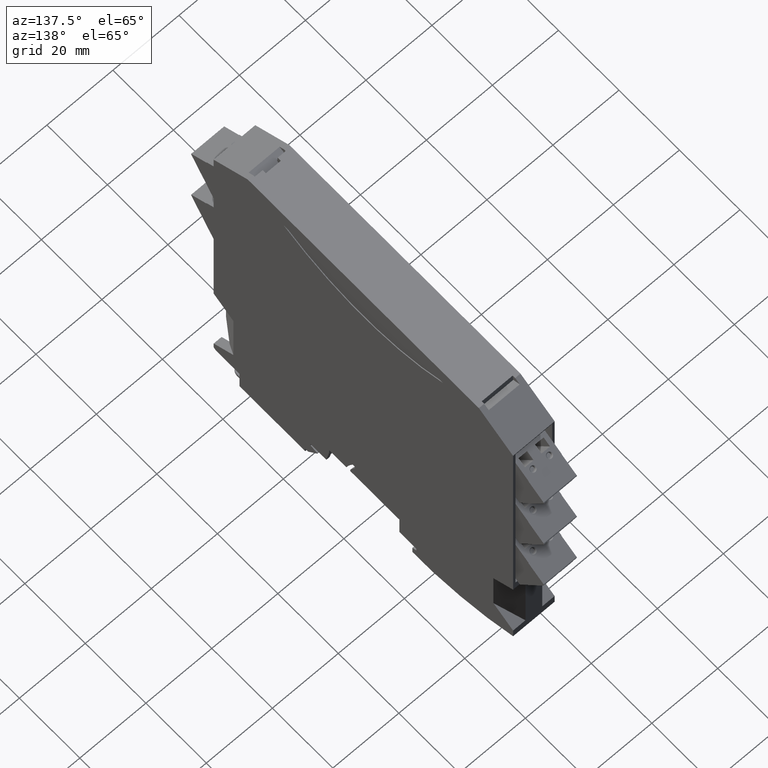
[diagram: clean part render]
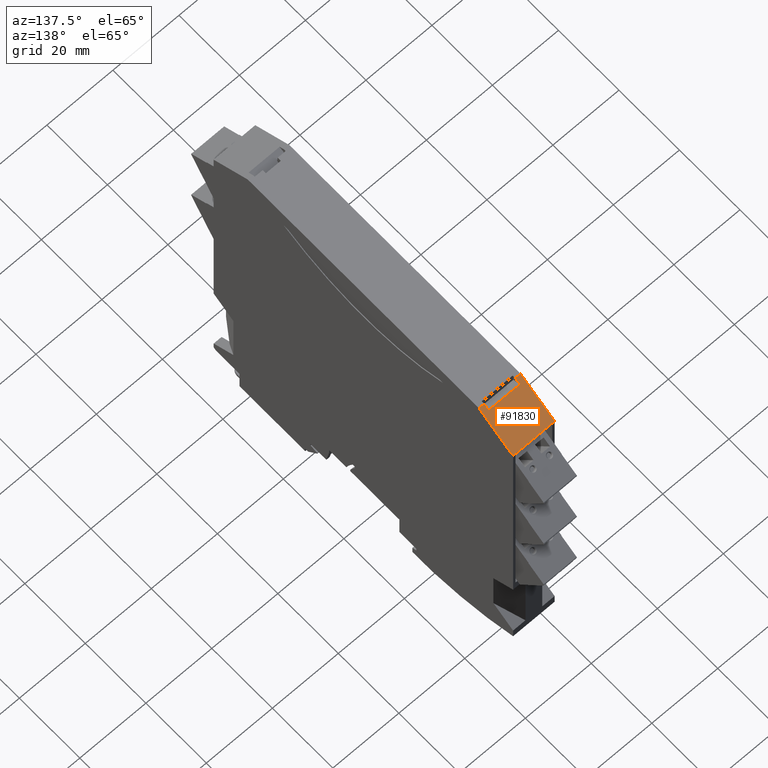
[diagram: same view with one face highlighted and labeled with its STEP entity id]
A machine part, auxiliary view. The second image highlights one B-rep face of the part: STEP entity #91830.
In plain terms, the highlighted planar face has unit normal (-0, -0.5446, -0.8387).
Its self-contained STEP definition (entity closure, byte-faithful):
#5710=CARTESIAN_POINT('',(12.5999992226559,87.700000000391,
113.699999999874));
#5720=VERTEX_POINT('',#5710);
#5750=CARTESIAN_POINT('',(12.5999992226559,49.5000000003095,
138.507370060177));
#5760=DIRECTION('',(1.24386761660573E-18,-0.838670567944371,
0.544639035016649));
#5770=VECTOR('',#5760,1.);
#5780=LINE('',#5750,#5770);
#5790=CARTESIAN_POINT('',(12.5999992226559,99.0000000001657,
106.361694196857));
#5800=VERTEX_POINT('',#5790);
#5810=EDGE_CURVE('',#5800,#5720,#5780,.T.);
#9090=CARTESIAN_POINT('',(8.79999999946697,99.0000000001657,
106.361694196857));
#9100=DIRECTION('',(1.,-5.21592700543322E-36,-2.28384227807285E-18));
#9110=VECTOR('',#9100,1.);
#9120=LINE('',#9090,#9110);
#9130=CARTESIAN_POINT('',(-6.65920651954366E-11,99.0000000001657,
106.361694196857));
#9140=VERTEX_POINT('',#9130);
#9150=EDGE_CURVE('',#9140,#5800,#9120,.T.);
#91320=CARTESIAN_POINT('',(12.5999992226559,87.7000000004445,
113.699999999839));
#91330=DIRECTION('',(-1.91539130044672E-18,-0.544639035016649,
-0.838670567944371));
#91340=DIRECTION('',(1.24386965445982E-18,-0.838670567944371,
0.544639035016649));
#91350=AXIS2_PLACEMENT_3D('',#91320,#91330,#91340);
#91360=PLANE('',#91350);
#91370=ORIENTED_EDGE('',*,*,#9150,.F.);
#91380=ORIENTED_EDGE('',*,*,#5810,.F.);
#91390=CARTESIAN_POINT('',(8.79999999946697,87.700000000391,
113.699999999874));
#91400=DIRECTION('',(-1.,5.21558977108073E-36,2.28384227807285E-18));
#91410=VECTOR('',#91400,1.);
#91420=LINE('',#91390,#91410);
#91430=CARTESIAN_POINT('',(10.9999992223369,87.7000000002141,
113.699999999874));
#91440=VERTEX_POINT('',#91430);
#91450=EDGE_CURVE('',#5720,#91440,#91420,.T.);
#91460=ORIENTED_EDGE('',*,*,#91450,.F.);
#91470=CARTESIAN_POINT('',(10.999999222263,49.5000000003095,
138.507370060177));
#91480=DIRECTION('',(1.62209010626097E-12,0.838670567944371,
-0.544639035016649));
#91490=VECTOR('',#91480,1.);
#91500=LINE('',#91470,#91490);
#91510=CARTESIAN_POINT('',(10.9999992223398,89.2099728324681,
112.719412177197));
#91520=VERTEX_POINT('',#91510);
#91530=EDGE_CURVE('',#91440,#91520,#91500,.T.);
#91540=ORIENTED_EDGE('',*,*,#91530,.F.);
#91550=CARTESIAN_POINT('',(8.79999999946697,89.2099728324681,
112.719412177197));
#91560=DIRECTION('',(1.,1.16032475869288E-16,-7.76362131654147E-17));
#91570=VECTOR('',#91560,1.);
#91580=LINE('',#91550,#91570);
#91590=CARTESIAN_POINT('',(1.59999922283014,89.2099728324681,
112.719412177197));
#91600=VERTEX_POINT('',#91590);
#91610=EDGE_CURVE('',#91600,#91520,#91580,.T.);
#91620=ORIENTED_EDGE('',*,*,#91610,.T.);
#91630=CARTESIAN_POINT('',(1.59999922283015,49.5000000003095,
138.507370060177));
#91640=DIRECTION('',(2.78799623772895E-16,-0.838670567944371,
0.544639035016649));
#91650=VECTOR('',#91640,1.);
#91660=LINE('',#91630,#91650);
#91670=CARTESIAN_POINT('',(1.59999922283014,87.7000000002141,
113.699999999874));
#91680=VERTEX_POINT('',#91670);
#91690=EDGE_CURVE('',#91600,#91680,#91660,.T.);
#91700=ORIENTED_EDGE('',*,*,#91690,.F.);
#91710=CARTESIAN_POINT('',(-5.56337198531764E-11,87.700000000391,
113.699999999874));
#91720=VERTEX_POINT('',#91710);
#91730=EDGE_CURVE('',#91680,#91720,#91420,.T.);
#91740=ORIENTED_EDGE('',*,*,#91730,.F.);
#91750=CARTESIAN_POINT('',(-1.85931270380024E-11,49.5000000003095,
138.507370060177));
#91760=DIRECTION('',(-8.13239609405544E-13,0.838670567944371,
-0.544639035016649));
#91770=VECTOR('',#91760,1.);
#91780=LINE('',#91750,#91770);
#91790=EDGE_CURVE('',#91720,#9140,#91780,.T.);
#91800=ORIENTED_EDGE('',*,*,#91790,.F.);
#91810=EDGE_LOOP('',(#91800,#91740,#91700,#91620,#91540,#91460,#91380,
#91370));
#91820=FACE_OUTER_BOUND('',#91810,.T.);
#91830=ADVANCED_FACE('',(#91820),#91360,.F.);